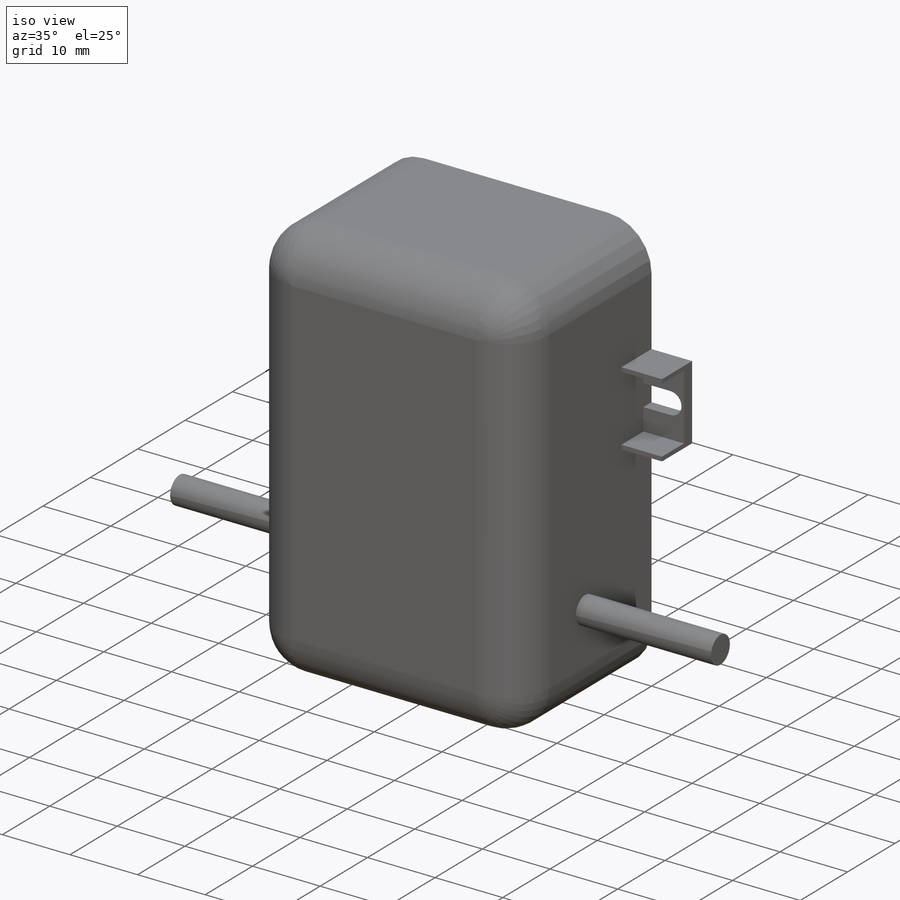
[diagram: iso view]
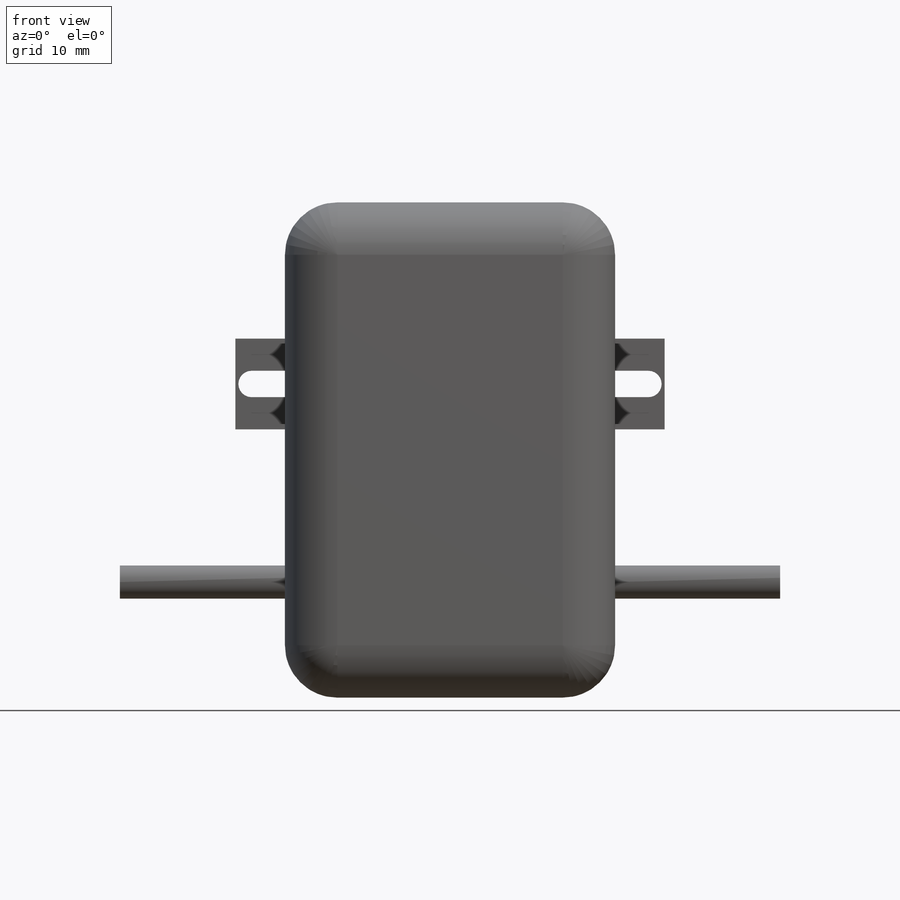
[diagram: front view]
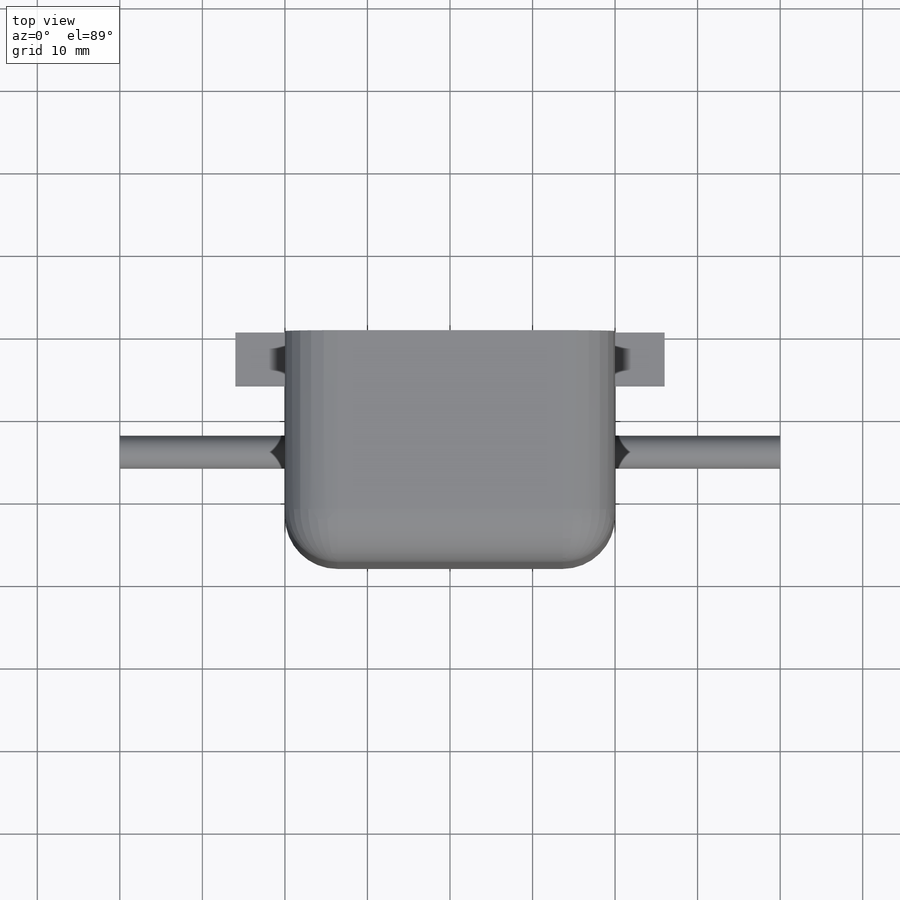
[diagram: top view]
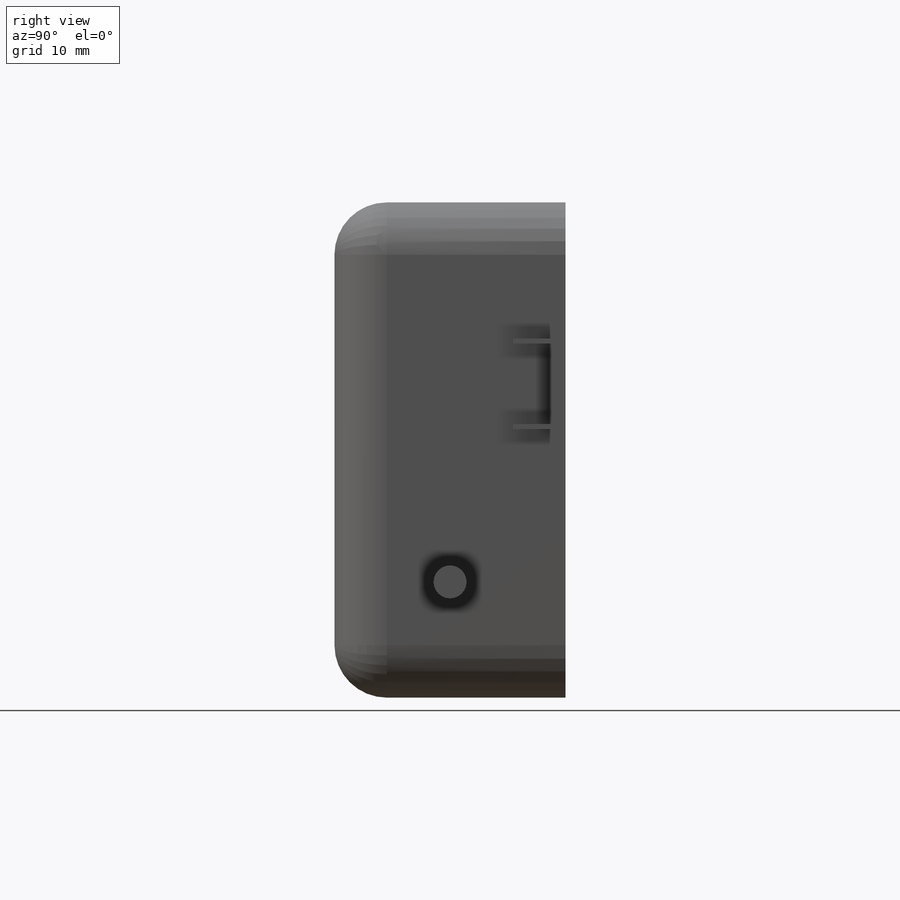
[diagram: right view]
SOLIDWORKS PART (.sldprt)
format: sldprt  version: not decoded by parser v0  size: 256,000 bytes
history: native  units: mm
features: sketch x4, extrude x3, material x1, fillet x1, cut_extrude x1 (+13 scaffold rows collapsed)
feature tree (23):
  scaffold x13  (default folders/planes/origin — collapsed)
  material  "Material <not specified>"
  sketch  "Sketch1"  dims[D1=40.0mm D2=60.0mm]
  extrude  "Boss-Extrude1"  Depth=28mm
  sketch  "Sketch2"  dims[D1=6.0mm D2=38.0mm D3=5.5mm D4=11.0mm D5=3.2mm]
  extrude  "Boss-Extrude2"  Depth=6.35mm
  fillet  "Fillet1"  Radius=6.35mm
  sketch  "Sketch4"  dims[D1=0.635mm D2=0.635mm]
  cut_extrude  "Cut-Extrude1"  Depth=4.6355mm
  sketch  "Sketch5"  dims[D3=4.0mm D1=14.0mm D2=14.0mm]
  extrude  "Boss-Extrude3"  Depth=80mm
decode coverage: 9 of 9 modeling features carry decoded parameters
note: suppression state not decoded; provenance and decode notes live in map.json
